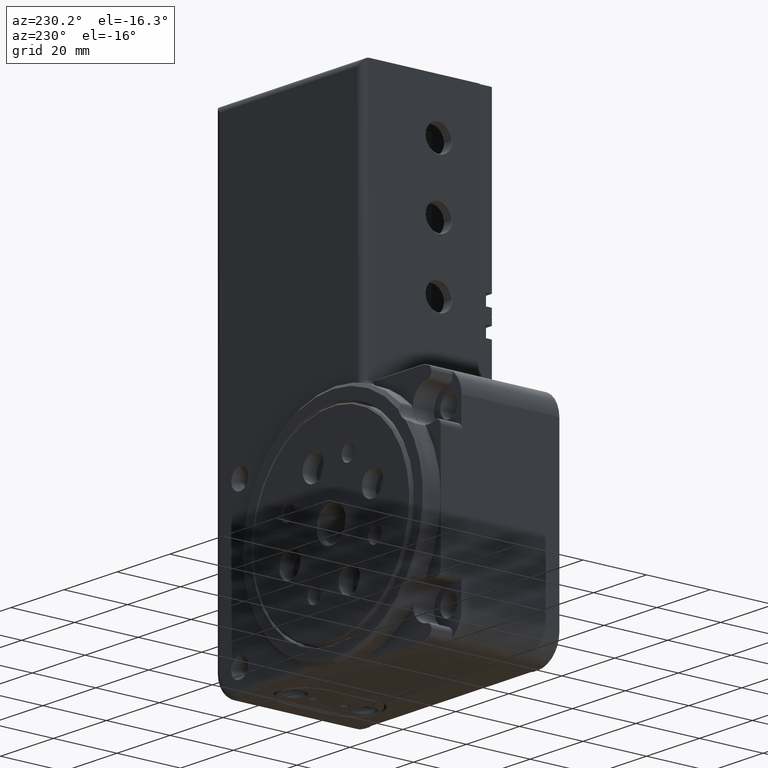
[diagram: clean part render]
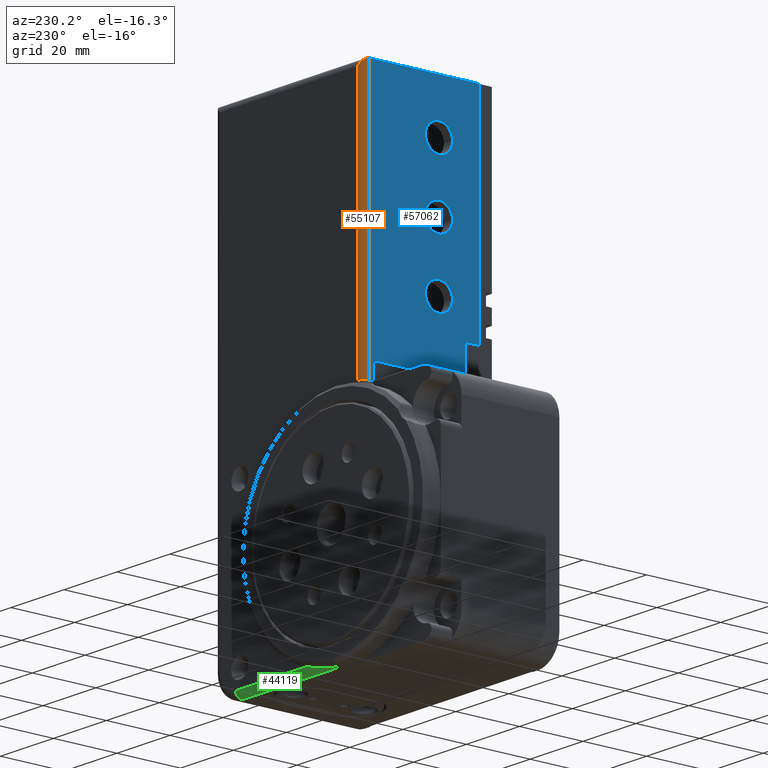
[diagram: same view with three faces highlighted in distinct colors, each labeled with its STEP entity id]
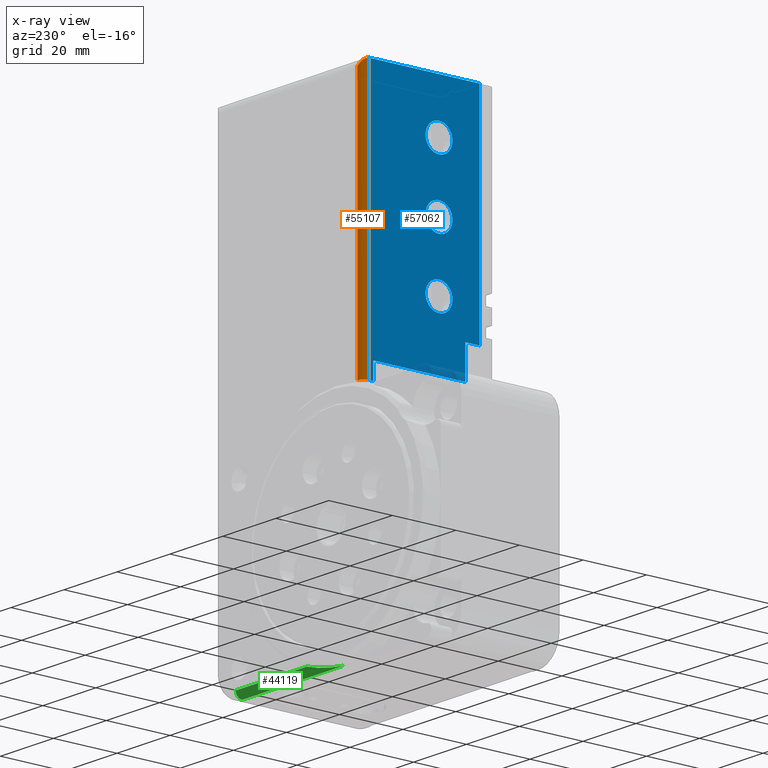
[diagram: x-ray of the same camera — body ghosted, the three highlighted faces saturated]
A machine part, auxiliary view with three faces highlighted in distinct colors.
The next image is the same camera in x-ray (body ghosted, the three faces saturated) — at least one of them is partly hidden behind the body in this view.
Their STEP definitions:

[orange] entity #55107 — the highlighted cylindrical surface (edge-blend (fillet) strip) has radius 2 mm, axis along (0, 0, -1).
#2626 = CARTESIAN_POINT ( 'NONE',  ( -14.78088360212578678, 22.33187534622827286, 192.1715728752540429 ) ) ;
#2873 = EDGE_CURVE ( 'NONE', #48640, #23369, #5539, .T. ) ;
#5539 =( BOUNDED_CURVE ( )  B_SPLINE_CURVE ( 3, ( #38080, #2626, #55451, #51388 ),
 .UNSPECIFIED., .F., .T. ) 
 B_SPLINE_CURVE_WITH_KNOTS ( ( 4, 4 ),
 ( 1.570796326794895004, 3.141592653589795336 ),
 .UNSPECIFIED. ) 
 CURVE ( )  GEOMETRIC_REPRESENTATION_ITEM ( )  RATIONAL_B_SPLINE_CURVE ( ( 1.000000000000000000, 0.8047378541243649375, 0.8047378541243649375, 1.000000000000000000 ) ) 
 REPRESENTATION_ITEM ( '' )  );
#6605 = VERTEX_POINT ( 'NONE', #48258 ) ;
#10139 = CARTESIAN_POINT ( 'NONE',  ( -13.60931072687195886, 20.33187534622829773, 79.50000000000000000 ) ) ;
#10318 = ORIENTED_EDGE ( 'NONE', *, *, #14079, .F. ) ;
#11131 = EDGE_CURVE ( 'NONE', #53348, #6605, #23316, .T. ) ;
#11255 = CARTESIAN_POINT ( 'NONE',  ( -15.60931072687199972, 20.33187534622829773, 111.8030171105895931 ) ) ;
#13178 = EDGE_LOOP ( 'NONE', ( #31791, #19488, #13595, #10318 ) ) ;
#13595 = ORIENTED_EDGE ( 'NONE', *, *, #2873, .F. ) ;
#14079 = EDGE_CURVE ( 'NONE', #53348, #48640, #54381, .T. ) ;
#14461 = FACE_OUTER_BOUND ( 'NONE', #13178, .T. ) ;
#17533 = EDGE_CURVE ( 'NONE', #23369, #6605, #25657, .T. ) ;
#19488 = ORIENTED_EDGE ( 'NONE', *, *, #17533, .F. ) ;
#23316 = CIRCLE ( 'NONE', #51044, 1.999999999999998224 ) ;
#23369 = VERTEX_POINT ( 'NONE', #53168 ) ;
#25657 = LINE ( 'NONE', #11255, #55876 ) ;
#30317 = DIRECTION ( 'NONE',  ( -5.551115123125779621E-17, 0.000000000000000000, 1.000000000000000000 ) ) ;
#31791 = ORIENTED_EDGE ( 'NONE', *, *, #11131, .T. ) ;
#34748 = CARTESIAN_POINT ( 'NONE',  ( -13.60931072687198018, 22.33187534622830128, 191.0000000000000000 ) ) ;
#36407 = DIRECTION ( 'NONE',  ( 0.000000000000000000, -1.000000000000000000, 0.000000000000000000 ) ) ;
#38080 = CARTESIAN_POINT ( 'NONE',  ( -13.60931072687198018, 22.33187534622830128, 191.0000000000000000 ) ) ;
#39890 = VECTOR ( 'NONE', #53014, 1000.000000000000000 ) ;
#41025 = CYLINDRICAL_SURFACE ( 'NONE', #51286, 1.999999999999998224 ) ;
#43292 = DIRECTION ( 'NONE',  ( 5.551115123125779621E-17, 0.000000000000000000, -1.000000000000000000 ) ) ;
#43315 = DIRECTION ( 'NONE',  ( 0.000000000000000000, 1.000000000000000000, 0.000000000000000000 ) ) ;
#43880 = CARTESIAN_POINT ( 'NONE',  ( -13.60931072687198018, 20.33187534622829773, 111.8030171105895931 ) ) ;
#48258 = CARTESIAN_POINT ( 'NONE',  ( -15.60931072687199972, 20.33187534622829773, 111.8030171105895931 ) ) ;
#48386 = CARTESIAN_POINT ( 'NONE',  ( -13.60931072687198018, 22.33187534622830128, 193.0000000000000000 ) ) ;
#48640 = VERTEX_POINT ( 'NONE', #34748 ) ;
#49741 = CARTESIAN_POINT ( 'NONE',  ( -13.60931072687198018, 22.33187534622830128, 111.8030171105895931 ) ) ;
#51044 = AXIS2_PLACEMENT_3D ( 'NONE', #43880, #30317, #43315 ) ;
#51286 = AXIS2_PLACEMENT_3D ( 'NONE', #10139, #53757, #36407 ) ;
#51388 = CARTESIAN_POINT ( 'NONE',  ( -15.60931072687199972, 20.33187534622829773, 193.0000000000000000 ) ) ;
#53014 = DIRECTION ( 'NONE',  ( -5.551115123125779621E-17, 0.000000000000000000, 1.000000000000000000 ) ) ;
#53168 = CARTESIAN_POINT ( 'NONE',  ( -15.60931072687199972, 20.33187534622829773, 193.0000000000000000 ) ) ;
#53348 = VERTEX_POINT ( 'NONE', #49741 ) ;
#53757 = DIRECTION ( 'NONE',  ( 5.551115123125779621E-17, 0.000000000000000000, -1.000000000000000000 ) ) ;
#54381 = LINE ( 'NONE', #48386, #39890 ) ;
#55107 = ADVANCED_FACE ( 'NONE', ( #14461 ), #41025, .T. ) ;
#55451 = CARTESIAN_POINT ( 'NONE',  ( -15.60931072687199617, 21.50344822148209900, 193.0000000000000853 ) ) ;
#55876 = VECTOR ( 'NONE', #43292, 1000.000000000000000 ) ;

[blue] entity #57062 — the highlighted planar face has unit normal (1, 0, 0).
#169 = DIRECTION ( 'NONE',  ( 1.000000000000000000, 0.000000000000000000, 5.551115123125779621E-17 ) ) ;
#1064 = CARTESIAN_POINT ( 'NONE',  ( -15.60931072687199972, 19.03187534622835031, 117.0000000000000000 ) ) ;
#2930 = EDGE_CURVE ( 'NONE', #21371, #26595, #33290, .T. ) ;
#2951 = DIRECTION ( 'NONE',  ( 0.000000000000000000, -1.000000000000000000, 0.000000000000000000 ) ) ;
#3555 = LINE ( 'NONE', #26280, #49864 ) ;
#5041 = VERTEX_POINT ( 'NONE', #42745 ) ;
#5069 = CARTESIAN_POINT ( 'NONE',  ( -15.60931072687199972, 19.03187534622835031, 117.0000000000000000 ) ) ;
#5191 = EDGE_LOOP ( 'NONE', ( #49737, #32804, #5714, #31965, #44157, #32202, #29249, #18418 ) ) ;
#5714 = ORIENTED_EDGE ( 'NONE', *, *, #42346, .F. ) ;
#5864 = CARTESIAN_POINT ( 'NONE',  ( -15.60931072687199972, -5.918124653771700494, 177.0000000000000000 ) ) ;
#5865 = ORIENTED_EDGE ( 'NONE', *, *, #14066, .T. ) ;
#6494 = EDGE_CURVE ( 'NONE', #26595, #21371, #24549, .T. ) ;
#6605 = VERTEX_POINT ( 'NONE', #48258 ) ;
#6744 = DIRECTION ( 'NONE',  ( 0.000000000000000000, -1.000000000000000000, 0.000000000000000000 ) ) ;
#6852 = LINE ( 'NONE', #55354, #17395 ) ;
#7312 = EDGE_LOOP ( 'NONE', ( #7548, #5865 ) ) ;
#7548 = ORIENTED_EDGE ( 'NONE', *, *, #31392, .T. ) ;
#7554 = CARTESIAN_POINT ( 'NONE',  ( -15.60931072687199972, -1.668124653771704935, 137.0000000000000000 ) ) ;
#7821 = VERTEX_POINT ( 'NONE', #34710 ) ;
#8549 = DIRECTION ( 'NONE',  ( 0.000000000000000000, -1.000000000000000000, 0.000000000000000000 ) ) ;
#8887 = VERTEX_POINT ( 'NONE', #11626 ) ;
#11255 = CARTESIAN_POINT ( 'NONE',  ( -15.60931072687199972, 20.33187534622829773, 111.8030171105895931 ) ) ;
#11618 = CARTESIAN_POINT ( 'NONE',  ( -15.60931072687199972, -1.668124653771704935, 157.0000000000000000 ) ) ;
#11626 = CARTESIAN_POINT ( 'NONE',  ( -15.60931072687199972, -9.968124653771710086, 117.0000000000000000 ) ) ;
#12174 = DIRECTION ( 'NONE',  ( 0.000000000000000000, 1.000000000000000000, 0.000000000000000000 ) ) ;
#12750 = CARTESIAN_POINT ( 'NONE',  ( -15.60931072687199972, -14.66812465377169872, 117.0000000000000000 ) ) ;
#13430 = DIRECTION ( 'NONE',  ( -5.551115123125779621E-17, 0.000000000000000000, 1.000000000000000000 ) ) ;
#14066 = EDGE_CURVE ( 'NONE', #34308, #29966, #50061, .T. ) ;
#14329 = AXIS2_PLACEMENT_3D ( 'NONE', #43440, #51823, #25536 ) ;
#14825 = ORIENTED_EDGE ( 'NONE', *, *, #2930, .T. ) ;
#15349 = LINE ( 'NONE', #32976, #38065 ) ;
#15354 = CARTESIAN_POINT ( 'NONE',  ( -15.60931072687199972, -1.668124653771704935, 177.0000000000000000 ) ) ;
#15408 = CIRCLE ( 'NONE', #16325, 4.250000000000000000 ) ;
#15600 = AXIS2_PLACEMENT_3D ( 'NONE', #15354, #50592, #24002 ) ;
#15748 = AXIS2_PLACEMENT_3D ( 'NONE', #11618, #24310, #6744 ) ;
#15766 = DIRECTION ( 'NONE',  ( 0.000000000000000000, -1.000000000000000000, 0.000000000000000000 ) ) ;
#16035 = ORIENTED_EDGE ( 'NONE', *, *, #27818, .T. ) ;
#16325 = AXIS2_PLACEMENT_3D ( 'NONE', #34858, #34019, #51633 ) ;
#16853 = AXIS2_PLACEMENT_3D ( 'NONE', #54101, #169, #8549 ) ;
#17395 = VECTOR ( 'NONE', #15766, 1000.000000000000000 ) ;
#17533 = EDGE_CURVE ( 'NONE', #23369, #6605, #25657, .T. ) ;
#18306 = CARTESIAN_POINT ( 'NONE',  ( -15.60931072687199972, -5.918124653771700494, 157.0000000000000000 ) ) ;
#18418 = ORIENTED_EDGE ( 'NONE', *, *, #17533, .T. ) ;
#19939 = DIRECTION ( 'NONE',  ( 1.000000000000000000, 0.000000000000000000, 5.551115123125779621E-17 ) ) ;
#20340 = FACE_BOUND ( 'NONE', #25863, .T. ) ;
#21005 = VERTEX_POINT ( 'NONE', #41370 ) ;
#21371 = VERTEX_POINT ( 'NONE', #18306 ) ;
#21377 = CARTESIAN_POINT ( 'NONE',  ( -15.60931072687199972, -1.668124653771704935, 157.0000000000000000 ) ) ;
#22548 = AXIS2_PLACEMENT_3D ( 'NONE', #7554, #19939, #2951 ) ;
#22954 = CIRCLE ( 'NONE', #15600, 4.250000000000000000 ) ;
#23369 = VERTEX_POINT ( 'NONE', #53168 ) ;
#24002 = DIRECTION ( 'NONE',  ( 0.000000000000000000, -1.000000000000000000, 0.000000000000000000 ) ) ;
#24235 = EDGE_CURVE ( 'NONE', #26793, #37377, #49573, .T. ) ;
#24310 = DIRECTION ( 'NONE',  ( 1.000000000000000000, 0.000000000000000000, 5.551115123125779621E-17 ) ) ;
#24549 = CIRCLE ( 'NONE', #39310, 4.250000000000000000 ) ;
#25536 = DIRECTION ( 'NONE',  ( -5.551115123125779621E-17, 0.000000000000000000, 1.000000000000000000 ) ) ;
#25657 = LINE ( 'NONE', #11255, #55876 ) ;
#25863 = EDGE_LOOP ( 'NONE', ( #55804, #16035 ) ) ;
#26280 = CARTESIAN_POINT ( 'NONE',  ( -15.60931072687199972, -14.66812465377169872, 127.0000000000000000 ) ) ;
#26595 = VERTEX_POINT ( 'NONE', #53210 ) ;
#26793 = VERTEX_POINT ( 'NONE', #45675 ) ;
#27818 = EDGE_CURVE ( 'NONE', #34886, #7821, #15408, .T. ) ;
#29249 = ORIENTED_EDGE ( 'NONE', *, *, #32463, .F. ) ;
#29311 = FACE_BOUND ( 'NONE', #7312, .T. ) ;
#29405 = CARTESIAN_POINT ( 'NONE',  ( -15.60931072687199972, -5.918124653771700494, 137.0000000000000000 ) ) ;
#29966 = VERTEX_POINT ( 'NONE', #52066 ) ;
#30748 = EDGE_CURVE ( 'NONE', #6605, #26793, #6852, .T. ) ;
#31392 = EDGE_CURVE ( 'NONE', #29966, #34308, #22954, .T. ) ;
#31965 = ORIENTED_EDGE ( 'NONE', *, *, #39798, .T. ) ;
#32202 = ORIENTED_EDGE ( 'NONE', *, *, #39090, .T. ) ;
#32456 = EDGE_CURVE ( 'NONE', #21005, #5041, #3555, .T. ) ;
#32463 = EDGE_CURVE ( 'NONE', #23369, #36337, #39001, .T. ) ;
#32804 = ORIENTED_EDGE ( 'NONE', *, *, #24235, .T. ) ;
#32976 = CARTESIAN_POINT ( 'NONE',  ( -15.60931072687199972, -14.46812465377166035, 193.0000000000000000 ) ) ;
#33290 = CIRCLE ( 'NONE', #15748, 4.250000000000000000 ) ;
#33548 = LINE ( 'NONE', #12750, #41031 ) ;
#34019 = DIRECTION ( 'NONE',  ( 1.000000000000000000, 0.000000000000000000, 5.551115123125779621E-17 ) ) ;
#34308 = VERTEX_POINT ( 'NONE', #5864 ) ;
#34493 = EDGE_CURVE ( 'NONE', #7821, #34886, #42882, .T. ) ;
#34710 = CARTESIAN_POINT ( 'NONE',  ( -15.60931072687199972, 2.581875346228294621, 137.0000000000000000 ) ) ;
#34809 = CARTESIAN_POINT ( 'NONE',  ( -15.60931072687199972, -9.968124653771710086, 117.0000000000000000 ) ) ;
#34858 = CARTESIAN_POINT ( 'NONE',  ( -15.60931072687199972, -1.668124653771704935, 137.0000000000000000 ) ) ;
#34886 = VERTEX_POINT ( 'NONE', #29405 ) ;
#35702 = EDGE_LOOP ( 'NONE', ( #38210, #14825 ) ) ;
#36337 = VERTEX_POINT ( 'NONE', #55800 ) ;
#37377 = VERTEX_POINT ( 'NONE', #5069 ) ;
#37892 = VECTOR ( 'NONE', #50415, 1000.000000000000000 ) ;
#38065 = VECTOR ( 'NONE', #50586, 1000.000000000000000 ) ;
#38210 = ORIENTED_EDGE ( 'NONE', *, *, #6494, .T. ) ;
#39001 = LINE ( 'NONE', #44199, #40660 ) ;
#39084 = PLANE ( 'NONE',  #14329 ) ;
#39090 = EDGE_CURVE ( 'NONE', #21005, #36337, #15349, .T. ) ;
#39310 = AXIS2_PLACEMENT_3D ( 'NONE', #21377, #43357, #55811 ) ;
#39798 = EDGE_CURVE ( 'NONE', #8887, #5041, #48096, .T. ) ;
#40660 = VECTOR ( 'NONE', #47974, 1000.000000000000000 ) ;
#41031 = VECTOR ( 'NONE', #12174, 1000.000000000000000 ) ;
#41370 = CARTESIAN_POINT ( 'NONE',  ( -15.60931072687199972, -14.46812465377166035, 127.0000000000000000 ) ) ;
#42346 = EDGE_CURVE ( 'NONE', #8887, #37377, #33548, .T. ) ;
#42745 = CARTESIAN_POINT ( 'NONE',  ( -15.60931072687199972, -9.968124653771710086, 127.0000000000000000 ) ) ;
#42882 = CIRCLE ( 'NONE', #22548, 4.250000000000000000 ) ;
#43292 = DIRECTION ( 'NONE',  ( 5.551115123125779621E-17, 0.000000000000000000, -1.000000000000000000 ) ) ;
#43357 = DIRECTION ( 'NONE',  ( 1.000000000000000000, 0.000000000000000000, 5.551115123125779621E-17 ) ) ;
#43440 = CARTESIAN_POINT ( 'NONE',  ( -15.60931072687199972, 23.83187534622829773, 117.0000000000000000 ) ) ;
#44157 = ORIENTED_EDGE ( 'NONE', *, *, #32456, .F. ) ;
#44199 = CARTESIAN_POINT ( 'NONE',  ( -15.60931072687199972, 18.83187534622829773, 193.0000000000000000 ) ) ;
#45675 = CARTESIAN_POINT ( 'NONE',  ( -15.60931072687199972, 19.03187534622835031, 111.8030171105895931 ) ) ;
#47974 = DIRECTION ( 'NONE',  ( 0.000000000000000000, -1.000000000000000000, 0.000000000000000000 ) ) ;
#48072 = FACE_BOUND ( 'NONE', #35702, .T. ) ;
#48096 = LINE ( 'NONE', #34809, #50165 ) ;
#48258 = CARTESIAN_POINT ( 'NONE',  ( -15.60931072687199972, 20.33187534622829773, 111.8030171105895931 ) ) ;
#49573 = LINE ( 'NONE', #1064, #37892 ) ;
#49737 = ORIENTED_EDGE ( 'NONE', *, *, #30748, .T. ) ;
#49864 = VECTOR ( 'NONE', #52024, 1000.000000000000000 ) ;
#50061 = CIRCLE ( 'NONE', #16853, 4.250000000000000000 ) ;
#50165 = VECTOR ( 'NONE', #13430, 1000.000000000000000 ) ;
#50415 = DIRECTION ( 'NONE',  ( -5.551115123125779621E-17, 0.000000000000000000, 1.000000000000000000 ) ) ;
#50586 = DIRECTION ( 'NONE',  ( -5.551115123125779621E-17, 0.000000000000000000, 1.000000000000000000 ) ) ;
#50592 = DIRECTION ( 'NONE',  ( 1.000000000000000000, 0.000000000000000000, 5.551115123125779621E-17 ) ) ;
#51633 = DIRECTION ( 'NONE',  ( 0.000000000000000000, -1.000000000000000000, 0.000000000000000000 ) ) ;
#51823 = DIRECTION ( 'NONE',  ( 1.000000000000000000, 0.000000000000000000, 5.551115123125779621E-17 ) ) ;
#52024 = DIRECTION ( 'NONE',  ( 0.000000000000000000, 1.000000000000000000, 0.000000000000000000 ) ) ;
#52066 = CARTESIAN_POINT ( 'NONE',  ( -15.60931072687199972, 2.581875346228294621, 177.0000000000000000 ) ) ;
#52113 = FACE_OUTER_BOUND ( 'NONE', #5191, .T. ) ;
#53168 = CARTESIAN_POINT ( 'NONE',  ( -15.60931072687199972, 20.33187534622829773, 193.0000000000000000 ) ) ;
#53210 = CARTESIAN_POINT ( 'NONE',  ( -15.60931072687199972, 2.581875346228294621, 157.0000000000000000 ) ) ;
#54101 = CARTESIAN_POINT ( 'NONE',  ( -15.60931072687199972, -1.668124653771704935, 177.0000000000000000 ) ) ;
#55354 = CARTESIAN_POINT ( 'NONE',  ( -15.60931072687199972, 18.83187534622829773, 111.8030171105895931 ) ) ;
#55800 = CARTESIAN_POINT ( 'NONE',  ( -15.60931072687199972, -14.46812465377166035, 193.0000000000000000 ) ) ;
#55804 = ORIENTED_EDGE ( 'NONE', *, *, #34493, .T. ) ;
#55811 = DIRECTION ( 'NONE',  ( 0.000000000000000000, -1.000000000000000000, 0.000000000000000000 ) ) ;
#55876 = VECTOR ( 'NONE', #43292, 1000.000000000000000 ) ;
#57062 = ADVANCED_FACE ( 'NONE', ( #20340, #48072, #29311, #52113 ), #39084, .F. ) ;

[green] entity #44119 — the highlighted cylindrical surface (edge-blend (fillet) strip) has radius 2 mm, axis along (1, 0, 0).
#183 = CARTESIAN_POINT ( 'NONE',  ( 1.039438414275793976, 21.88384020842610411, 42.73693930317966050 ) ) ;
#420 = VERTEX_POINT ( 'NONE', #32741 ) ;
#947 = CYLINDRICAL_SURFACE ( 'NONE', #35619, 1.999999999999998224 ) ;
#1046 = CARTESIAN_POINT ( 'NONE',  ( 2.726248858011547149, 22.13447922760552089, 43.13359468209219472 ) ) ;
#1159 = ORIENTED_EDGE ( 'NONE', *, *, #47439, .F. ) ;
#1920 = CARTESIAN_POINT ( 'NONE',  ( -2.699594713111423072, 21.13084383801976429, 42.16603029283868409 ) ) ;
#2692 = CARTESIAN_POINT ( 'NONE',  ( 32.39068927312799673, 22.33187534622830128, 44.00000000000000000 ) ) ;
#4123 = ORIENTED_EDGE ( 'NONE', *, *, #47068, .F. ) ;
#4450 = LINE ( 'NONE', #35871, #37710 ) ;
#4921 = B_SPLINE_CURVE_WITH_KNOTS ( 'NONE', 3,
 ( #49251, #9696, #27284, #35680, #44932, #5402, #39714, #18904, #40583, #1046, #31341, #18612, #48963, #48400, #53886, #183, #9993, #27580, #52742, #30777, #44063, #17766, #22367, #8847, #53033, #13455, #31065, #19746, #45491, #49836, #1920, #41715, #42291, #15151, #6805, #50112, #50393, #37097, #28998, #28438, #54466 ),
 .UNSPECIFIED., .F., .F.,
 ( 4, 2, 2, 1, 1, 1, 1, 2, 2, 2, 2, 1, 1, 1, 1, 2, 2, 2, 2, 1, 1, 1, 1, 1, 2, 2, 4 ),
 ( 0.000000000000000000, 0.1250000000000235645, 0.1875000000000352773, 0.2187500000000411060, 0.2343750000000442146, 0.2421875000000459632, 0.2460937500000467681, 0.2480468750000469624, 0.2500000000000471290, 0.3750000000000544564, 0.4375000000000580092, 0.4687500000000596190, 0.4843750000000605627, 0.4921875000000611178, 0.4960937500000614508, 0.4980468750000615064, 0.5000000000000616174, 0.6250000000000683897, 0.6875000000000719425, 0.7187500000000737188, 0.7343750000000747180, 0.7421875000000751621, 0.7460937500000754952, 0.7480468750000754952, 0.7490234375000754952, 0.7500000000000753841, 1.000000000000000000 ),
 .UNSPECIFIED. ) ;
#4955 = DIRECTION ( 'NONE',  ( -1.000000000000000000, 0.000000000000000000, -5.551115123125779621E-17 ) ) ;
#5142 = VERTEX_POINT ( 'NONE', #18149 ) ;
#5402 = CARTESIAN_POINT ( 'NONE',  ( 3.324362989725353490, 22.20387245932638010, 43.29505576111039034 ) ) ;
#6805 = CARTESIAN_POINT ( 'NONE',  ( -3.143741995751490048, 21.03016782073065372, 42.12586156286921835 ) ) ;
#8847 = CARTESIAN_POINT ( 'NONE',  ( -0.2351744224932602323, 21.65072253440841976, 42.49645532986602348 ) ) ;
#9696 = CARTESIAN_POINT ( 'NONE',  ( 5.126873450881424432, 22.33187534622829418, 43.84955451043040853 ) ) ;
#9993 = CARTESIAN_POINT ( 'NONE',  ( 0.7899272580770098084, 21.84082828462141990, 42.68574088097787467 ) ) ;
#12035 = AXIS2_PLACEMENT_3D ( 'NONE', #30512, #18344, #53331 ) ;
#12366 = ORIENTED_EDGE ( 'NONE', *, *, #31239, .F. ) ;
#13455 = CARTESIAN_POINT ( 'NONE',  ( -0.6761871846690356014, 21.56500700020768591, 42.42159137018066417 ) ) ;
#15151 = CARTESIAN_POINT ( 'NONE',  ( -3.113757088960455111, 21.03700855666681946, 42.12841880169937525 ) ) ;
#16032 = EDGE_LOOP ( 'NONE', ( #17376, #12366, #4123, #1159 ) ) ;
#17376 = ORIENTED_EDGE ( 'NONE', *, *, #51558, .T. ) ;
#17525 = CIRCLE ( 'NONE', #12035, 1.999999999999998224 ) ;
#17766 = CARTESIAN_POINT ( 'NONE',  ( -0.1933332033076161360, 21.65883178476940074, 42.50359854030572393 ) ) ;
#18149 = CARTESIAN_POINT ( 'NONE',  ( 5.552593062818630187, 22.33187534622830128, 44.00000000000000000 ) ) ;
#18344 = DIRECTION ( 'NONE',  ( -1.000000000000000000, 0.000000000000000000, -5.551115123125779621E-17 ) ) ;
#18612 = CARTESIAN_POINT ( 'NONE',  ( 2.684414341020213257, 22.12919994187294748, 43.12271447952677050 ) ) ;
#18904 = CARTESIAN_POINT ( 'NONE',  ( 2.900885044063436169, 22.15600471307867991, 43.17952403351347357 ) ) ;
#19746 = CARTESIAN_POINT ( 'NONE',  ( -1.862135405506190056, 21.31572476444247499, 42.25778108063559557 ) ) ;
#22367 = CARTESIAN_POINT ( 'NONE',  ( -0.2184305974202074285, 21.65396980278562822, 42.49931010216199923 ) ) ;
#23714 = DIRECTION ( 'NONE',  ( 1.000000000000000000, 0.000000000000000000, 5.551115123125779621E-17 ) ) ;
#27284 = CARTESIAN_POINT ( 'NONE',  ( 4.673995312531067370, 22.31480829464138083, 43.69875002734831071 ) ) ;
#27580 = CARTESIAN_POINT ( 'NONE',  ( 0.4062713777655403979, 21.77174306092435785, 42.61156944911824951 ) ) ;
#28297 = LINE ( 'NONE', #54039, #56624 ) ;
#28438 = CARTESIAN_POINT ( 'NONE',  ( -4.800017505281588548, 20.64485559165487771, 41.99999999999998579 ) ) ;
#28998 = CARTESIAN_POINT ( 'NONE',  ( -3.821518804164318883, 20.87533336158407238, 42.06880269088986779 ) ) ;
#30512 = CARTESIAN_POINT ( 'NONE',  ( 32.39068927312799673, 20.33187534622829773, 44.00000000000000000 ) ) ;
#30777 = CARTESIAN_POINT ( 'NONE',  ( -0.01855031190229810764, 21.69242855013731486, 42.53392135228048687 ) ) ;
#31065 = CARTESIAN_POINT ( 'NONE',  ( -1.131702087026052794, 21.47176418680081511, 42.35227991866752717 ) ) ;
#31239 = EDGE_CURVE ( 'NONE', #420, #44276, #4450, .T. ) ;
#31254 = DIRECTION ( 'NONE',  ( 0.000000000000000000, -1.000000000000000000, 0.000000000000000000 ) ) ;
#31341 = CARTESIAN_POINT ( 'NONE',  ( 2.701156403977930331, 22.13131665627874156, 43.12706473094554127 ) ) ;
#31822 = FACE_OUTER_BOUND ( 'NONE', #16032, .T. ) ;
#32741 = CARTESIAN_POINT ( 'NONE',  ( -6.109310726871981068, 20.33187534622829773, 42.00000000000000000 ) ) ;
#35619 = AXIS2_PLACEMENT_3D ( 'NONE', #54369, #23714, #31254 ) ;
#35680 = CARTESIAN_POINT ( 'NONE',  ( 3.953024043428079004, 22.26360713988060525, 43.47668492391411377 ) ) ;
#35871 = CARTESIAN_POINT ( 'NONE',  ( 32.39068927312799673, 20.33187534622829773, 42.00000000000000000 ) ) ;
#37097 = CARTESIAN_POINT ( 'NONE',  ( -3.171250230375640466, 21.02388668450975828, 42.12353505634012407 ) ) ;
#37710 = VECTOR ( 'NONE', #53512, 1000.000000000000000 ) ;
#39714 = CARTESIAN_POINT ( 'NONE',  ( 3.131039460959604614, 22.18307199020480525, 43.24132549914556733 ) ) ;
#40583 = CARTESIAN_POINT ( 'NONE',  ( 2.784653460163808880, 22.14177105872785845, 43.14886295690588014 ) ) ;
#41715 = CARTESIAN_POINT ( 'NONE',  ( -2.934972627275850954, 21.07766596793311820, 42.14412977535251059 ) ) ;
#42291 = CARTESIAN_POINT ( 'NONE',  ( -3.053947965074824022, 21.05063474220333930, 42.13358618054210325 ) ) ;
#42405 = VERTEX_POINT ( 'NONE', #2692 ) ;
#44063 = CARTESIAN_POINT ( 'NONE',  ( -0.1349010242016578931, 21.67011396532415191, 42.51364858952529602 ) ) ;
#44119 = ADVANCED_FACE ( 'NONE', ( #31822 ), #947, .T. ) ;
#44276 = VERTEX_POINT ( 'NONE', #49730 ) ;
#44932 = CARTESIAN_POINT ( 'NONE',  ( 3.705760064767710027, 22.24227332539694757, 43.40335955625012332 ) ) ;
#45491 = CARTESIAN_POINT ( 'NONE',  ( -2.113470176373502873, 21.26101575661502707, 42.22786729810579232 ) ) ;
#47068 = EDGE_CURVE ( 'NONE', #5142, #420, #4921, .T. ) ;
#47439 = EDGE_CURVE ( 'NONE', #42405, #5142, #28297, .T. ) ;
#48400 = CARTESIAN_POINT ( 'NONE',  ( 2.230801243488214958, 22.07149579950936058, 43.00520367856179149 ) ) ;
#48963 = CARTESIAN_POINT ( 'NONE',  ( 2.674477423839946688, 22.12793908543016030, 43.12013702150883177 ) ) ;
#49251 = CARTESIAN_POINT ( 'NONE',  ( 5.552593062818630187, 22.33187534622830128, 44.00000000000000000 ) ) ;
#49730 = CARTESIAN_POINT ( 'NONE',  ( 32.39068927312799673, 20.33187534622829773, 42.00000000000000000 ) ) ;
#49836 = CARTESIAN_POINT ( 'NONE',  ( -2.502256169793384721, 21.17490844431184982, 42.18612135931925877 ) ) ;
#50112 = CARTESIAN_POINT ( 'NONE',  ( -3.156609884743593497, 21.02723015322203892, 42.12477130852073515 ) ) ;
#50393 = CARTESIAN_POINT ( 'NONE',  ( -3.165192302645672306, 21.02527039187495816, 42.12404574423493386 ) ) ;
#51558 = EDGE_CURVE ( 'NONE', #42405, #44276, #17525, .T. ) ;
#52742 = CARTESIAN_POINT ( 'NONE',  ( 0.2120964525680794355, 21.73605861457832589, 42.57514073079383365 ) ) ;
#53033 = CARTESIAN_POINT ( 'NONE',  ( -0.2453076754010997951, 21.64875477271860760, 42.49473209173659427 ) ) ;
#53331 = DIRECTION ( 'NONE',  ( 0.000000000000000000, 1.000000000000000000, 0.000000000000000000 ) ) ;
#53512 = DIRECTION ( 'NONE',  ( 1.000000000000000000, 0.000000000000000000, 5.551115123125779621E-17 ) ) ;
#53886 = CARTESIAN_POINT ( 'NONE',  ( 1.769244185036328298, 22.00374130386009952, 42.89463175850072219 ) ) ;
#54039 = CARTESIAN_POINT ( 'NONE',  ( -6.109310726871981068, 22.33187534622830128, 44.00000000000000000 ) ) ;
#54369 = CARTESIAN_POINT ( 'NONE',  ( -1.359310726871979957, 20.33187534622829773, 44.00000000000000000 ) ) ;
#54466 = CARTESIAN_POINT ( 'NONE',  ( -6.109310726871981068, 20.33187534622829773, 42.00000000000000000 ) ) ;
#56624 = VECTOR ( 'NONE', #4955, 1000.000000000000000 ) ;